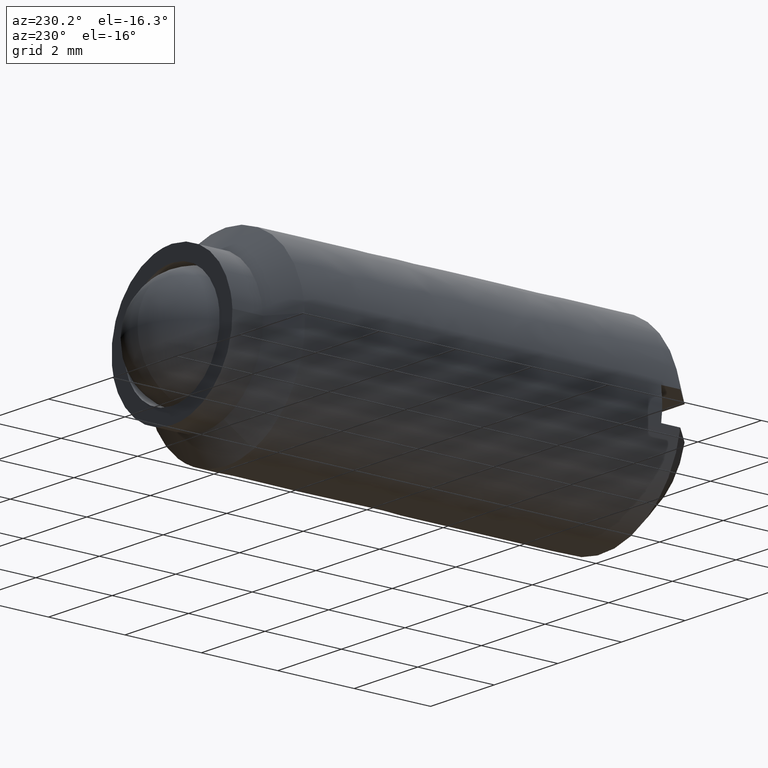
[diagram: clean part render]
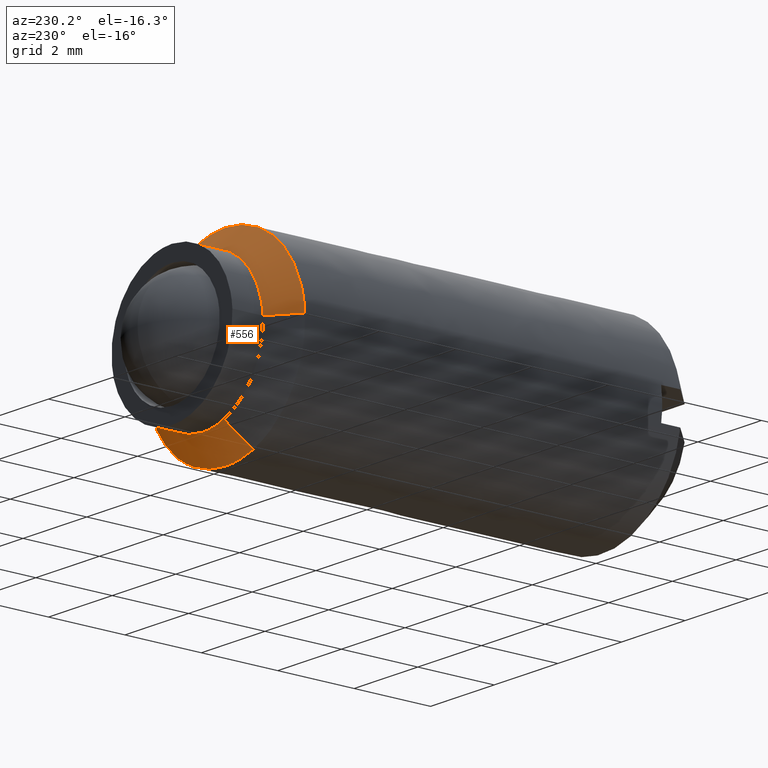
[diagram: same view with one face highlighted and labeled with its STEP entity id]
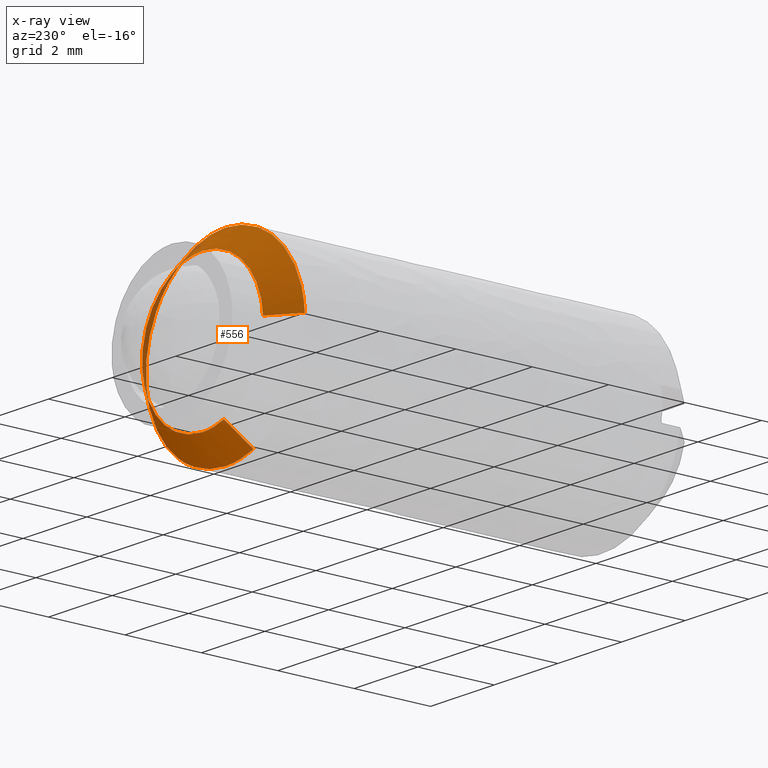
[diagram: x-ray of the same camera — body ghosted, the highlighted face saturated]
A machine part, auxiliary view. The second image highlights one B-rep face of the part: STEP entity #556.
The next image is the same camera in x-ray: the body ghosted, the highlighted face saturated — about 8% of this face is hidden behind the body in this view.
In plain terms, the highlighted face is a freeform B-spline surface patch.
Its self-contained STEP definition (entity closure, byte-faithful):
#286=CARTESIAN_POINT('',(-1.896456117002499,-1.700000000003540,0.115992225129656));
#287=VERTEX_POINT('',#286);
#293=CARTESIAN_POINT('',(0.0,-1.700000000000000,1.899999999999999));
#294=VERTEX_POINT('',#293);
#295=CARTESIAN_POINT('',(0.0,-1.700000000000000,1.899999999999999));
#296=CARTESIAN_POINT('',(-1.787341527070503,-1.700000000000000,1.899999999999998));
#297=CARTESIAN_POINT('',(-1.896456117002499,-1.700000000003540,0.115992225129656));
#305=(BOUNDED_CURVE()B_SPLINE_CURVE(2,(#295,#296,#297),.UNSPECIFIED.,.F.,.U.)B_SPLINE_CURVE_WITH_KNOTS((3,3),(0.500000000000000,0.739332962237120),.UNSPECIFIED.)CURVE()GEOMETRIC_REPRESENTATION_ITEM()RATIONAL_B_SPLINE_CURVE((1.0,0.719603993288846,0.976072041662811))REPRESENTATION_ITEM(''));
#306=EDGE_CURVE('',#294,#287,#305,.T.);
#308=CARTESIAN_POINT('',(1.886718471939577,-1.700000000000000,-0.224261917480567));
#309=VERTEX_POINT('',#308);
#310=CARTESIAN_POINT('',(1.886718471939578,-1.700000000000000,-0.224261917480567));
#311=CARTESIAN_POINT('',(1.900000000000000,-1.700000000000000,-0.112524246619032));
#312=CARTESIAN_POINT('',(1.900000000000000,-1.700000000000000,-8.511014E-016));
#313=CARTESIAN_POINT('',(1.900000000000000,-1.700000000000001,1.899999999999998));
#314=CARTESIAN_POINT('',(0.0,-1.700000000000000,1.899999999999999));
#322=(BOUNDED_CURVE()B_SPLINE_CURVE(2,(#310,#311,#312,#313,#314),.UNSPECIFIED.,.F.,.U.)B_SPLINE_CURVE_WITH_KNOTS((3,2,3),(0.229562753739958,0.250000000000000,0.500000000000000),.UNSPECIFIED.)CURVE()GEOMETRIC_REPRESENTATION_ITEM()RATIONAL_B_SPLINE_CURVE((0.956027303439745,0.976056276636852,1.0,0.707106781186547,1.0))REPRESENTATION_ITEM(''));
#323=EDGE_CURVE('',#309,#294,#322,.T.);
#371=CARTESIAN_POINT('',(0.0,-1.700000000000000,-1.900000000000001));
#372=VERTEX_POINT('',#371);
#373=CARTESIAN_POINT('',(0.0,-1.700000000000000,-1.900000000000001));
#374=CARTESIAN_POINT('',(1.687534417102971,-1.700000000000001,-1.900000000000001));
#375=CARTESIAN_POINT('',(1.886718471939578,-1.700000000000000,-0.224261917480567));
#383=(BOUNDED_CURVE()B_SPLINE_CURVE(2,(#373,#374,#375),.UNSPECIFIED.,.F.,.U.)B_SPLINE_CURVE_WITH_KNOTS((3,3),(0.0,0.229562753739958),.UNSPECIFIED.)CURVE()GEOMETRIC_REPRESENTATION_ITEM()RATIONAL_B_SPLINE_CURVE((1.0,0.731050504549695,0.956027303439745))REPRESENTATION_ITEM(''));
#384=EDGE_CURVE('',#372,#309,#383,.T.);
#386=CARTESIAN_POINT('',(-0.668074151346452,-1.700000000000239,-1.778672799674979));
#387=VERTEX_POINT('',#386);
#388=CARTESIAN_POINT('',(-0.668074151346452,-1.700000000000240,-1.778672799674979));
#389=CARTESIAN_POINT('',(-0.345054033529472,-1.700000000000000,-1.900000000000001));
#390=CARTESIAN_POINT('',(0.0,-1.700000000000000,-1.900000000000001));
#398=(BOUNDED_CURVE()B_SPLINE_CURVE(2,(#388,#389,#390),.UNSPECIFIED.,.F.,.U.)B_SPLINE_CURVE_WITH_KNOTS((3,3),(0.940284170898487,1.0),.UNSPECIFIED.)CURVE()GEOMETRIC_REPRESENTATION_ITEM()RATIONAL_B_SPLINE_CURVE((0.893499554635248,0.930038554401375,1.0))REPRESENTATION_ITEM(''));
#399=EDGE_CURVE('',#387,#372,#398,.T.);
#435=CARTESIAN_POINT('',(-0.662799881728113,-1.685000000000000,-1.764630645993999));
#436=CARTESIAN_POINT('',(-0.397715116483545,-1.684999999999999,-1.864197176503309));
#437=CARTESIAN_POINT('',(-0.115076497023205,-1.685000000000000,-1.881484095025219));
#438=CARTESIAN_POINT('',(1.766407598002012,-1.685000000000001,-1.996560592048424));
#439=CARTESIAN_POINT('',(1.881484095025218,-1.685000000000000,-0.115076497023206));
#440=CARTESIAN_POINT('',(1.996560592048424,-1.685000000000001,1.766407598002012));
#441=CARTESIAN_POINT('',(0.115076497023205,-1.685000000000000,1.881484095025217));
#442=CARTESIAN_POINT('',(-1.766407598002012,-1.685000000000001,1.996560592048423));
#443=CARTESIAN_POINT('',(-1.881484095025218,-1.685000000000000,0.115076497023204));
#444=CARTESIAN_POINT('',(-0.884451062335201,-2.315375000000000,-2.354752154465334));
#445=CARTESIAN_POINT('',(-0.530717592108645,-2.315375000000000,-2.487615370210616));
#446=CARTESIAN_POINT('',(-0.153559970132491,-2.315375000000000,-2.510683318580404));
#447=CARTESIAN_POINT('',(2.357123348447912,-2.315375000000001,-2.664243288712895));
#448=CARTESIAN_POINT('',(2.510683318580403,-2.315375000000000,-0.153559970132492));
#449=CARTESIAN_POINT('',(2.664243288712894,-2.315375000000001,2.357123348447912));
#450=CARTESIAN_POINT('',(0.153559970132491,-2.315375000000000,2.510683318580402));
#451=CARTESIAN_POINT('',(-2.357123348447912,-2.315375000000001,2.664243288712894));
#452=CARTESIAN_POINT('',(-2.510683318580403,-2.315375000000000,0.153559970132490));
#460=(BOUNDED_SURFACE()B_SPLINE_SURFACE(2,1,((#435,#444),(#436,#445),(#437,#446),(#438,#447),(#439,#448),(#440,#449),(#441,#450),(#442,#451),(#443,#452)),.UNSPECIFIED.,.F.,.F.,.U.)B_SPLINE_SURFACE_WITH_KNOTS((3,2,2,2,3),(2,2),(0.0,0.833521951563379,5.001131709380275,9.168741467197171,13.336351225014070),(0.0,1.0),.UNSPECIFIED.)GEOMETRIC_REPRESENTATION_ITEM()RATIONAL_B_SPLINE_SURFACE(((0.906274169979695,0.906274169979695),(0.941421356237309,0.941421356237309),(1.0,1.0),(0.707106781186548,0.707106781186548),(1.0,1.0),(0.707106781186548,0.707106781186548),(1.0,1.0),(0.707106781186548,0.707106781186548),(1.0,1.0)))REPRESENTATION_ITEM('')SURFACE());
#461=ORIENTED_EDGE('',*,*,#399,.T.);
#462=ORIENTED_EDGE('',*,*,#384,.T.);
#463=ORIENTED_EDGE('',*,*,#323,.T.);
#464=ORIENTED_EDGE('',*,*,#306,.T.);
#465=CARTESIAN_POINT('',(-2.495336996056258,-2.300000000002961,0.152621348859628));
#466=VERTEX_POINT('',#465);
#467=CARTESIAN_POINT('',(-1.896456117002499,-1.700000000003540,0.115992225129656));
#468=CARTESIAN_POINT('',(-2.495336996056258,-2.300000000002961,0.152621348859628));
#469=QUASI_UNIFORM_CURVE('',1,(#467,#468),.UNSPECIFIED.,.F.,.U.);
#470=EDGE_CURVE('',#287,#466,#469,.T.);
#471=ORIENTED_EDGE('',*,*,#470,.T.);
#472=CARTESIAN_POINT('',(0.0,-2.300000000000000,2.499999999999999));
#473=VERTEX_POINT('',#472);
#474=CARTESIAN_POINT('',(0.0,-2.300000000000000,2.499999999999999));
#475=CARTESIAN_POINT('',(-2.351765167222105,-2.300000000000000,2.500000000000000));
#476=CARTESIAN_POINT('',(-2.495336996056259,-2.300000000002961,0.152621348859628));
#484=(BOUNDED_CURVE()B_SPLINE_CURVE(2,(#474,#475,#476),.UNSPECIFIED.,.F.,.U.)B_SPLINE_CURVE_WITH_KNOTS((3,3),(0.500000000000000,0.739332962238883),.UNSPECIFIED.)CURVE()GEOMETRIC_REPRESENTATION_ITEM()RATIONAL_B_SPLINE_CURVE((1.0,0.719603993286780,0.976072041666589))REPRESENTATION_ITEM(''));
#485=EDGE_CURVE('',#473,#466,#484,.T.);
#486=ORIENTED_EDGE('',*,*,#485,.F.);
#487=CARTESIAN_POINT('',(1.818315486528456,-2.299999999999970,1.715729813068122));
#488=VERTEX_POINT('',#487);
#489=CARTESIAN_POINT('',(1.818315486528456,-2.299999999999971,1.715729813068122));
#490=CARTESIAN_POINT('',(1.078292277158913,-2.300000000000000,2.500000000000000));
#491=CARTESIAN_POINT('',(0.0,-2.300000000000000,2.499999999999999));
#499=(BOUNDED_CURVE()B_SPLINE_CURVE(2,(#489,#490,#491),.UNSPECIFIED.,.F.,.U.)B_SPLINE_CURVE_WITH_KNOTS((3,3),(0.370620956215220,0.500000000000000),.UNSPECIFIED.)CURVE()GEOMETRIC_REPRESENTATION_ITEM()RATIONAL_B_SPLINE_CURVE((0.853733119474259,0.848423021675476,1.0))REPRESENTATION_ITEM(''));
#500=EDGE_CURVE('',#488,#473,#499,.T.);
#501=ORIENTED_EDGE('',*,*,#500,.F.);
#502=CARTESIAN_POINT('',(1.494303351258331,-2.299999999999954,-2.004259837051412));
#503=VERTEX_POINT('',#502);
#504=CARTESIAN_POINT('',(1.494303351258332,-2.299999999999953,-2.004259837051412));
#505=CARTESIAN_POINT('',(2.500000000000000,-2.300000000000000,-1.254449486241988));
#506=CARTESIAN_POINT('',(2.500000000000000,-2.300000000000000,-8.511014E-016));
#507=CARTESIAN_POINT('',(2.500000000000000,-2.300000000000000,0.993286470697336));
#508=CARTESIAN_POINT('',(1.818315486528456,-2.299999999999971,1.715729813068123));
#516=(BOUNDED_CURVE()B_SPLINE_CURVE(2,(#504,#505,#506,#507,#508),.UNSPECIFIED.,.F.,.U.)B_SPLINE_CURVE_WITH_KNOTS((3,2,3),(0.103121803616288,0.250000000000000,0.370620956215219),.UNSPECIFIED.)CURVE()GEOMETRIC_REPRESENTATION_ITEM()RATIONAL_B_SPLINE_CURVE((0.858039628780873,0.827921489150641,1.0,0.858683759511071,0.853733119474259))REPRESENTATION_ITEM(''));
#517=EDGE_CURVE('',#503,#488,#516,.T.);
#518=ORIENTED_EDGE('',*,*,#517,.F.);
#519=CARTESIAN_POINT('',(0.0,-2.300000000000000,-2.500000000000001));
#520=VERTEX_POINT('',#519);
#521=CARTESIAN_POINT('',(0.0,-2.300000000000000,-2.500000000000001));
#522=CARTESIAN_POINT('',(0.829382921732118,-2.300000000000000,-2.500000000000000));
#523=CARTESIAN_POINT('',(1.494303351258331,-2.299999999999954,-2.004259837051412));
#531=(BOUNDED_CURVE()B_SPLINE_CURVE(2,(#521,#522,#523),.UNSPECIFIED.,.F.,.U.)B_SPLINE_CURVE_WITH_KNOTS((3,3),(0.0,0.103121803616288),.UNSPECIFIED.)CURVE()GEOMETRIC_REPRESENTATION_ITEM()RATIONAL_B_SPLINE_CURVE((1.0,0.879185292035907,0.858039628780873))REPRESENTATION_ITEM(''));
#532=EDGE_CURVE('',#520,#503,#531,.T.);
#533=ORIENTED_EDGE('',*,*,#532,.F.);
#534=CARTESIAN_POINT('',(-0.879044935992926,-2.300000000001367,-2.340358946937847));
#535=VERTEX_POINT('',#534);
#536=CARTESIAN_POINT('',(-0.879044935992926,-2.300000000001368,-2.340358946937847));
#537=CARTESIAN_POINT('',(-0.454018465181815,-2.299999999999999,-2.500000000000001));
#538=CARTESIAN_POINT('',(0.0,-2.300000000000000,-2.500000000000001));
#546=(BOUNDED_CURVE()B_SPLINE_CURVE(2,(#536,#537,#538),.UNSPECIFIED.,.F.,.U.)B_SPLINE_CURVE_WITH_KNOTS((3,3),(0.940284170897085,1.0),.UNSPECIFIED.)CURVE()GEOMETRIC_REPRESENTATION_ITEM()RATIONAL_B_SPLINE_CURVE((0.893499554633533,0.930038554399733,1.0))REPRESENTATION_ITEM(''));
#547=EDGE_CURVE('',#535,#520,#546,.T.);
#548=ORIENTED_EDGE('',*,*,#547,.F.);
#549=CARTESIAN_POINT('',(-0.668074151346452,-1.700000000000239,-1.778672799674979));
#550=CARTESIAN_POINT('',(-0.879044935992926,-2.300000000001367,-2.340358946937847));
#551=QUASI_UNIFORM_CURVE('',1,(#549,#550),.UNSPECIFIED.,.F.,.U.);
#552=EDGE_CURVE('',#387,#535,#551,.T.);
#553=ORIENTED_EDGE('',*,*,#552,.F.);
#554=EDGE_LOOP('',(#461,#462,#463,#464,#471,#486,#501,#518,#533,#548,#553));
#555=FACE_OUTER_BOUND('',#554,.T.);
#556=ADVANCED_FACE('',(#555),#460,.T.);